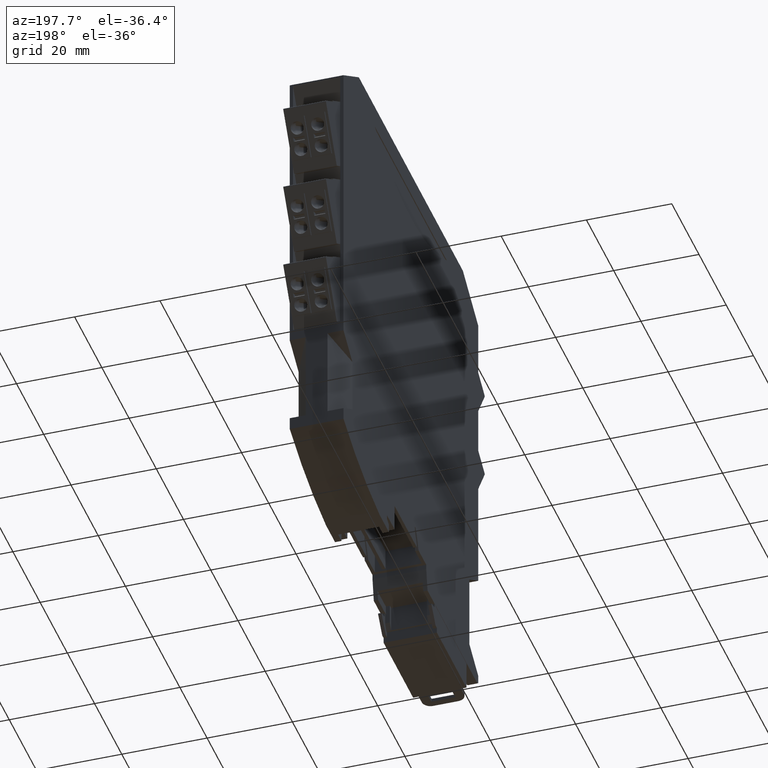
[diagram: clean part render]
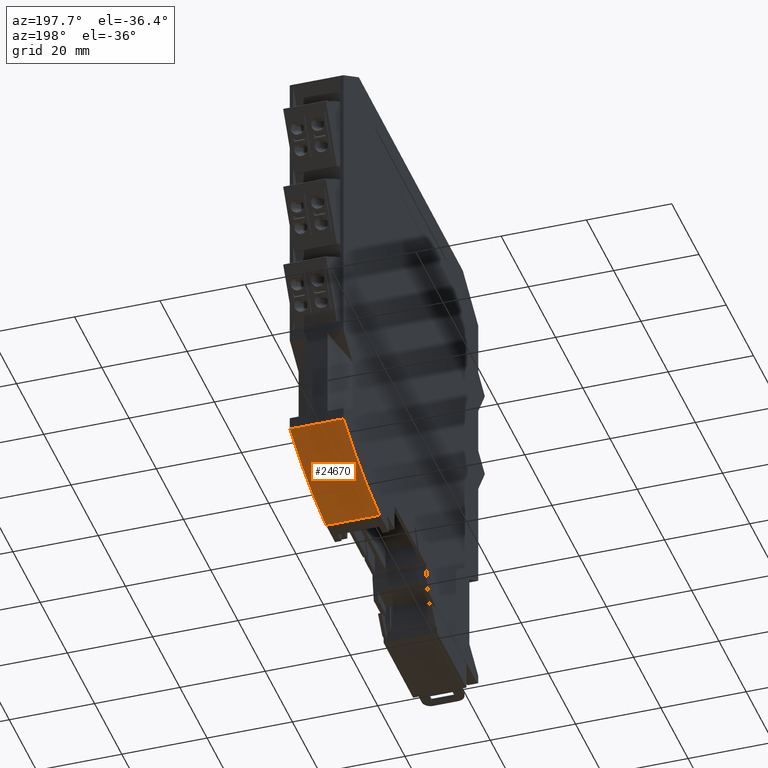
[diagram: same view with one face highlighted and labeled with its STEP entity id]
A machine part, auxiliary view. The second image highlights one B-rep face of the part: STEP entity #24670.
In plain terms, the highlighted cylindrical surface (partial cylindrical patch) has radius 80 mm, axis along (-1, 0, 0).
Its self-contained STEP definition (entity closure, byte-faithful):
#6060=CARTESIAN_POINT('',(12.5999992226559,99.000000000385,
11.0077156020573));
#6070=VERTEX_POINT('',#6060);
#6100=CARTESIAN_POINT('',(12.5999992226559,63.0000000001872,
82.4499999999246));
#6110=DIRECTION('',(-1.,5.21592700555424E-36,2.28384227807285E-18));
#6120=DIRECTION('',(4.191076862855E-30,-1.,1.83510136361891E-12));
#6130=AXIS2_PLACEMENT_3D('',#6100,#6110,#6120);
#6140=CIRCLE('',#6130,80.);
#6150=CARTESIAN_POINT('',(12.5999992226559,72.3646943356781,
2.99999999990686));
#6160=VERTEX_POINT('',#6150);
#6170=EDGE_CURVE('',#6070,#6160,#6140,.T.);
#9490=CARTESIAN_POINT('',(-3.16848769443823E-11,99.000000000385,
11.0077156020573));
#9500=VERTEX_POINT('',#9490);
#9530=CARTESIAN_POINT('',(12.5999992226559,99.000000000385,
11.0077156020573));
#9540=DIRECTION('',(-1.,5.21592700555424E-36,2.28384227807285E-18));
#9550=VECTOR('',#9540,1.);
#9560=LINE('',#9530,#9550);
#9570=EDGE_CURVE('',#6070,#9500,#9560,.T.);
#14730=CARTESIAN_POINT('',(12.5999992226559,72.364694335678,
2.99999999990685));
#14740=DIRECTION('',(-1.,5.21592700555424E-36,2.28384227807285E-18));
#14750=VECTOR('',#14740,1.);
#14760=LINE('',#14730,#14750);
#14770=CARTESIAN_POINT('',(-3.16848769443823E-11,72.364694335678,
2.99999999990685));
#14780=VERTEX_POINT('',#14770);
#14790=EDGE_CURVE('',#6160,#14780,#14760,.T.);
#24500=CARTESIAN_POINT('',(12.5999992226559,63.0000000001872,
82.4499999999246));
#24510=DIRECTION('',(-1.,5.21592700555424E-36,2.28384227807285E-18));
#24520=DIRECTION('',(4.191076862855E-30,-1.,1.83510136361891E-12));
#24530=AXIS2_PLACEMENT_3D('',#24500,#24510,#24520);
#24540=CYLINDRICAL_SURFACE('',#24530,80.);
#24550=ORIENTED_EDGE('',*,*,#9570,.F.);
#24560=CARTESIAN_POINT('',(-3.16848769443823E-11,63.0000000001872,
82.4499999999246));
#24570=DIRECTION('',(-1.,5.21592700555424E-36,2.28384227807285E-18));
#24580=DIRECTION('',(4.191076862855E-30,-1.,1.83510136361891E-12));
#24590=AXIS2_PLACEMENT_3D('',#24560,#24570,#24580);
#24600=CIRCLE('',#24590,80.);
#24610=EDGE_CURVE('',#9500,#14780,#24600,.T.);
#24620=ORIENTED_EDGE('',*,*,#24610,.F.);
#24630=ORIENTED_EDGE('',*,*,#14790,.T.);
#24640=ORIENTED_EDGE('',*,*,#6170,.T.);
#24650=EDGE_LOOP('',(#24640,#24630,#24620,#24550));
#24660=FACE_OUTER_BOUND('',#24650,.T.);
#24670=ADVANCED_FACE('',(#24660),#24540,.T.);